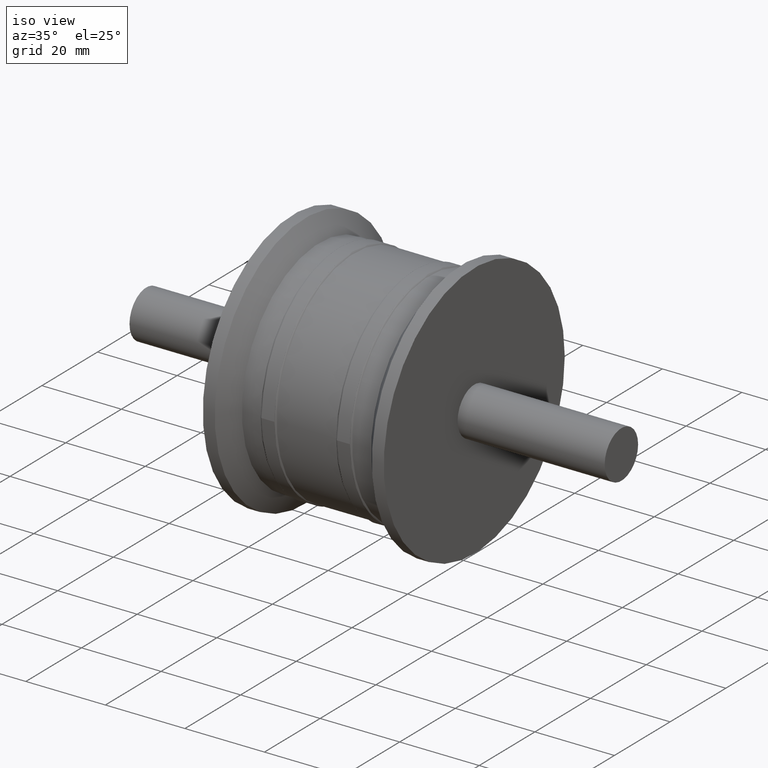
[diagram: clean part render]
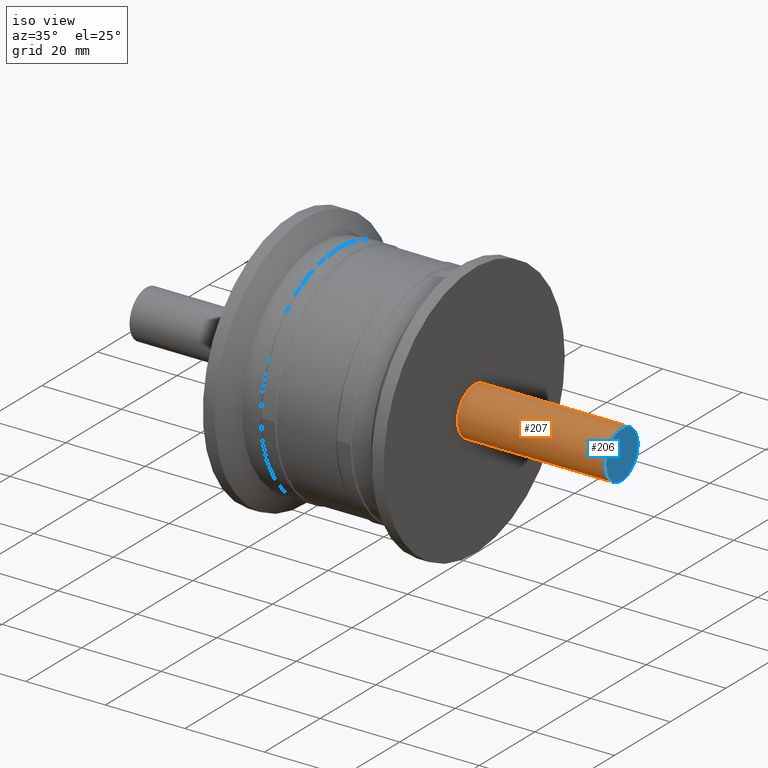
[diagram: same view with the hole feature highlighted: cylindrical wall and planar end face, labeled with their STEP entity ids]
A machine part, iso view. The highlighted faces form one hole feature of diameter 12 mm: the cylindrical wall (entity #207, orange) and its adjacent planar end face (entity #206, blue) — they share a circular edge in the B-rep.
Wall:
#25=CYLINDRICAL_SURFACE('',#241,6.00000000000002);
#40=FACE_BOUND('',#88,.T.);
#58=FACE_OUTER_BOUND('',#87,.T.);
#87=EDGE_LOOP('',(#177));
#88=EDGE_LOOP('',(#178));
#111=CIRCLE('',#233,6.00000000000001);
#114=CIRCLE('',#240,6.00000000000002);
#129=VERTEX_POINT('',#356);
#132=VERTEX_POINT('',#366);
#147=EDGE_CURVE('',#129,#129,#111,.T.);
#150=EDGE_CURVE('',#132,#132,#114,.T.);
#177=ORIENTED_EDGE('',*,*,#150,.F.);
#178=ORIENTED_EDGE('',*,*,#147,.T.);
#207=ADVANCED_FACE('',(#58,#40),#25,.T.);
#233=AXIS2_PLACEMENT_3D('',#357,#288,#289);
#240=AXIS2_PLACEMENT_3D('',#367,#302,#303);
#241=AXIS2_PLACEMENT_3D('',#368,#304,#305);
#288=DIRECTION('center_axis',(1.,3.16459002187477E-16,0.));
#289=DIRECTION('ref_axis',(0.,0.,-1.));
#302=DIRECTION('center_axis',(1.,3.16459002187477E-16,0.));
#303=DIRECTION('ref_axis',(0.,0.,-1.));
#304=DIRECTION('center_axis',(1.,3.16459002187477E-16,0.));
#305=DIRECTION('ref_axis',(-6.32918004374955E-16,1.,0.));
#356=CARTESIAN_POINT('',(22.75,6.00000000000002,0.));
#357=CARTESIAN_POINT('Origin',(22.75,7.19944229976511E-15,0.));
#366=CARTESIAN_POINT('',(59.75,6.00000000000004,0.));
#367=CARTESIAN_POINT('Origin',(59.75,1.89084253807018E-14,0.));
#368=CARTESIAN_POINT('Origin',(41.25,1.30539338402334E-14,0.));
End face:
#18=PLANE('',#239);
#57=FACE_OUTER_BOUND('',#86,.T.);
#86=EDGE_LOOP('',(#176));
#114=CIRCLE('',#240,6.00000000000002);
#132=VERTEX_POINT('',#366);
#150=EDGE_CURVE('',#132,#132,#114,.T.);
#176=ORIENTED_EDGE('',*,*,#150,.T.);
#206=ADVANCED_FACE('',(#57),#18,.F.);
#239=AXIS2_PLACEMENT_3D('',#365,#300,#301);
#240=AXIS2_PLACEMENT_3D('',#367,#302,#303);
#300=DIRECTION('center_axis',(-1.,-3.16459002187477E-16,0.));
#301=DIRECTION('ref_axis',(0.,0.,1.));
#302=DIRECTION('center_axis',(1.,3.16459002187477E-16,0.));
#303=DIRECTION('ref_axis',(0.,0.,-1.));
#365=CARTESIAN_POINT('Origin',(59.75,6.00000000000004,0.));
#366=CARTESIAN_POINT('',(59.75,6.00000000000004,0.));
#367=CARTESIAN_POINT('Origin',(59.75,1.89084253807018E-14,0.));